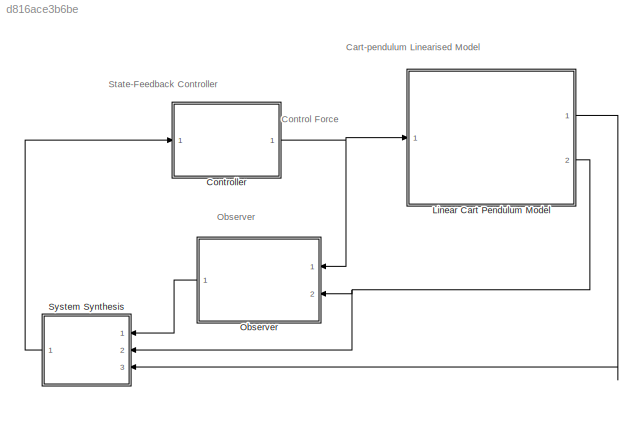
MODEL slx_d816ace3b6be
KIND model
CONFIG AbsTol = auto
CONFIG EnableMultiTasking = off
CONFIG FixedStep = auto
CONFIG MaxStep = auto
CONFIG MinStep = auto
CONFIG RelTol = 1e-3
CONFIG SampleTimeConstraint = Unconstrained
CONFIG Solver = VariableStepAuto
CONFIG SolverName = VariableStepAuto
CONFIG StartTime = 0.0
CONFIG StopTime = 10.0
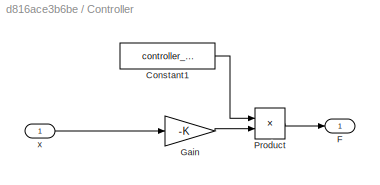
BLOCK [SubSystem] Controller
  Ports = [1, 1]
  RequestExecContextInheritance = off
BLOCK [Constant] Controller/Constant1
  Value = controller_enabled
BLOCK [Outport] Controller/F
  IconDisplay = Port number
BLOCK [Gain] Controller/Gain
  Gain = -K
  Multiplication = Matrix(K*u)
  OutDataTypeStr = Inherit: Inherit via internal rule
  ParamDataTypeStr = Inherit: Inherit via internal rule
  SaturateOnIntegerOverflow = off
BLOCK [Product] Controller/Product
  InputSameDT = off
  OutDataTypeStr = Inherit: Inherit via internal rule
  Ports = [2, 1]
  RndMeth = Floor
  SaturateOnIntegerOverflow = off
BLOCK [Inport] Controller/x
  IconDisplay = Port number
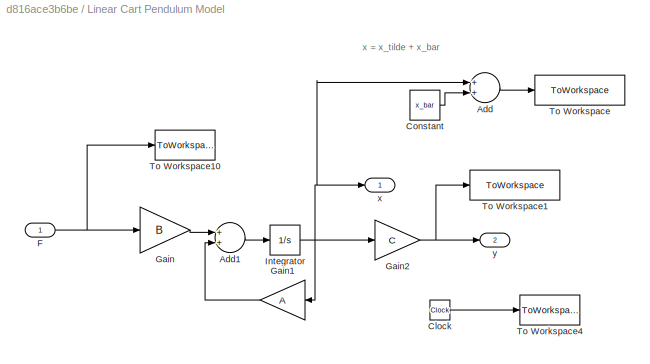
BLOCK [SubSystem] Linear Cart Pendulum Model
  Ports = [1, 2]
  RequestExecContextInheritance = off
BLOCK [Sum] Linear Cart Pendulum Model/Add
  InputSameDT = off
  OutDataTypeStr = Inherit: Inherit via internal rule
  Ports = [2, 1]
  SaturateOnIntegerOverflow = off
BLOCK [Sum] Linear Cart Pendulum Model/Add1
  InputSameDT = off
  OutDataTypeStr = Inherit: Inherit via internal rule
  Ports = [2, 1]
  SaturateOnIntegerOverflow = off
BLOCK [Clock] Linear Cart Pendulum Model/Clock
BLOCK [Constant] Linear Cart Pendulum Model/Constant
  Value = x_bar
BLOCK [Inport] Linear Cart Pendulum Model/F
  IconDisplay = Port number
BLOCK [Gain] Linear Cart Pendulum Model/Gain
  Gain = B
  Multiplication = Matrix(K*u)
  OutDataTypeStr = Inherit: Inherit via internal rule
  ParamDataTypeStr = Inherit: Inherit via internal rule
  SaturateOnIntegerOverflow = off
BLOCK [Gain] Linear Cart Pendulum Model/Gain1
  Gain = A
  Multiplication = Matrix(K*u)
  OutDataTypeStr = Inherit: Inherit via internal rule
  ParamDataTypeStr = Inherit: Inherit via internal rule
  SaturateOnIntegerOverflow = off
BLOCK [Gain] Linear Cart Pendulum Model/Gain2
  Gain = C
  Multiplication = Matrix(K*u)
  OutDataTypeStr = Inherit: Inherit via internal rule
  ParamDataTypeStr = Inherit: Inherit via internal rule
  SaturateOnIntegerOverflow = off
BLOCK [Integrator] Linear Cart Pendulum Model/Integrator
  InitialCondition = x0-x_bar
  Ports = [1, 1]
BLOCK [ToWorkspace] Linear Cart Pendulum Model/To Workspace
  FixptAsFi = on
  MaxDataPoints = inf
  Ports = [1]
  SampleTime = -1
  VariableName = x
BLOCK [ToWorkspace] Linear Cart Pendulum Model/To Workspace1
  FixptAsFi = on
  MaxDataPoints = inf
  Ports = [1]
  SampleTime = -1
  VariableName = y
BLOCK [ToWorkspace] Linear Cart Pendulum Model/To Workspace10
  MaxDataPoints = inf
  Ports = [1]
  SampleTime = -1
  VariableName = F
BLOCK [ToWorkspace] Linear Cart Pendulum Model/To Workspace4
  MaxDataPoints = inf
  Ports = [1]
  SampleTime = -1
  VariableName = t
BLOCK [Outport] Linear Cart Pendulum Model/x 
  IconDisplay = Port number
  VectorParamsAs1DForOutWhenUnconnected = off
BLOCK [Outport] Linear Cart Pendulum Model/y
  IconDisplay = Port number
  Port = 2
  VectorParamsAs1DForOutWhenUnconnected = off
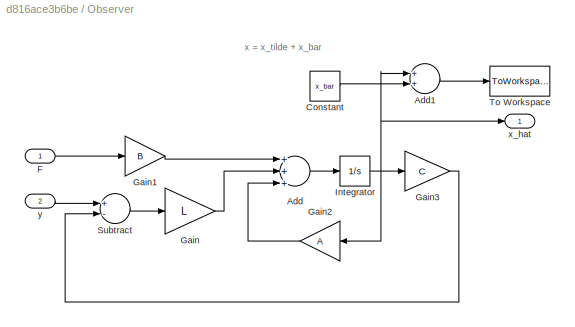
BLOCK [SubSystem] Observer
  Ports = [2, 1]
  RequestExecContextInheritance = off
BLOCK [Sum] Observer/Add
  InputSameDT = off
  Inputs = +++
  OutDataTypeStr = Inherit: Inherit via internal rule
  Ports = [3, 1]
  SaturateOnIntegerOverflow = off
BLOCK [Sum] Observer/Add1
  InputSameDT = off
  OutDataTypeStr = Inherit: Inherit via internal rule
  Ports = [2, 1]
  SaturateOnIntegerOverflow = off
BLOCK [Constant] Observer/Constant
  Value = x_bar
BLOCK [Inport] Observer/F
  IconDisplay = Port number
BLOCK [Gain] Observer/Gain
  Gain = L
  Multiplication = Matrix(K*u)
  OutDataTypeStr = Inherit: Inherit via internal rule
  ParamDataTypeStr = Inherit: Inherit via internal rule
  SaturateOnIntegerOverflow = off
BLOCK [Gain] Observer/Gain1
  Gain = B
  Multiplication = Matrix(K*u)
  OutDataTypeStr = Inherit: Inherit via internal rule
  ParamDataTypeStr = Inherit: Inherit via internal rule
  SaturateOnIntegerOverflow = off
BLOCK [Gain] Observer/Gain2
  Gain = A
  Multiplication = Matrix(K*u)
  OutDataTypeStr = Inherit: Inherit via internal rule
  ParamDataTypeStr = Inherit: Inherit via internal rule
  SaturateOnIntegerOverflow = off
BLOCK [Gain] Observer/Gain3
  Gain = C
  Multiplication = Matrix(K*u)
  OutDataTypeStr = Inherit: Inherit via internal rule
  ParamDataTypeStr = Inherit: Inherit via internal rule
  SaturateOnIntegerOverflow = off
BLOCK [Integrator] Observer/Integrator
  Ports = [1, 1]
BLOCK [Sum] Observer/Subtract
  InputSameDT = off
  Inputs = +-
  OutDataTypeStr = Inherit: Inherit via internal rule
  Ports = [2, 1]
  SaturateOnIntegerOverflow = off
BLOCK [ToWorkspace] Observer/To Workspace
  FixptAsFi = on
  MaxDataPoints = inf
  Ports = [1]
  SampleTime = -1
  VariableName = x_hat
BLOCK [Outport] Observer/x_hat
  IconDisplay = Port number
  VectorParamsAs1DForOutWhenUnconnected = off
BLOCK [Inport] Observer/y
  IconDisplay = Port number
  Port = 2
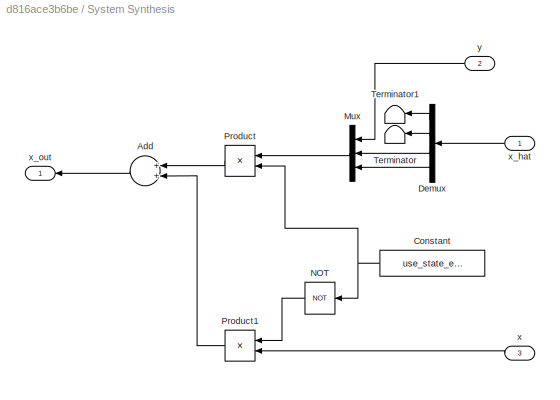
BLOCK [SubSystem] System Synthesis
  Ports = [3, 1]
  RequestExecContextInheritance = off
BLOCK [Sum] System Synthesis/Add
  InputSameDT = off
  OutDataTypeStr = Inherit: Inherit via internal rule
  Ports = [2, 1]
  SaturateOnIntegerOverflow = off
BLOCK [Constant] System Synthesis/Constant
  Value = use_state_estimates
BLOCK [Demux] System Synthesis/Demux
  DisplayOption = bar
  Ports = [1, 4]
BLOCK [Mux] System Synthesis/Mux
  DisplayOption = bar
  Inputs = 3
  Ports = [3, 1]
BLOCK [Logic] System Synthesis/NOT
  AllPortsSameDT = off
  IconShape = distinctive
  Operator = NOT
  OutDataTypeStr = boolean
  Ports = [1, 1]
BLOCK [Product] System Synthesis/Product
  InputSameDT = off
  OutDataTypeStr = Inherit: Inherit via internal rule
  Ports = [2, 1]
  RndMeth = Floor
  SaturateOnIntegerOverflow = off
BLOCK [Product] System Synthesis/Product1
  InputSameDT = off
  OutDataTypeStr = Inherit: Inherit via internal rule
  Ports = [2, 1]
  RndMeth = Floor
  SaturateOnIntegerOverflow = off
BLOCK [Terminator] System Synthesis/Terminator
BLOCK [Terminator] System Synthesis/Terminator1
BLOCK [Inport] System Synthesis/x
  IconDisplay = Port number
  Port = 3
BLOCK [Inport] System Synthesis/x_hat
  IconDisplay = Port number
BLOCK [Outport] System Synthesis/x_out
  IconDisplay = Port number
BLOCK [Inport] System Synthesis/y
  IconDisplay = Port number
  Port = 2
ANNOTATION (root): Cart-pendulum Linearised Model
ANNOTATION (root): State-Feedback Controller
ANNOTATION (root): Control Force
ANNOTATION (root): Observer
ANNOTATION Linear Cart Pendulum Model: x = x_tilde + x_bar
ANNOTATION Observer: x = x_tilde + x_bar
LINE Controller/Constant1:1 -> Controller/Product:1
LINE Controller/Gain:1 -> Controller/Product:2
LINE Controller/Product:1 -> Controller/F:1
LINE Controller/x:1 -> Controller/Gain:1
NET Controller:1 -> Linear Cart Pendulum Model:1, Observer:1
LINE Linear Cart Pendulum Model/Add1:1 -> Linear Cart Pendulum Model/Integrator:1
LINE Linear Cart Pendulum Model/Add:1 -> Linear Cart Pendulum Model/To Workspace:1
LINE Linear Cart Pendulum Model/Clock:1 -> Linear Cart Pendulum Model/To Workspace4:1
LINE Linear Cart Pendulum Model/Constant:1 -> Linear Cart Pendulum Model/Add:2
NET Linear Cart Pendulum Model/F:1 -> Linear Cart Pendulum Model/Gain:1, Linear Cart Pendulum Model/To Workspace10:1
LINE Linear Cart Pendulum Model/Gain1:1 -> Linear Cart Pendulum Model/Add1:2
NET Linear Cart Pendulum Model/Gain2:1 -> Linear Cart Pendulum Model/To Workspace1:1, Linear Cart Pendulum Model/y:1
LINE Linear Cart Pendulum Model/Gain:1 -> Linear Cart Pendulum Model/Add1:1
NET Linear Cart Pendulum Model/Integrator:1 -> Linear Cart Pendulum Model/Add:1, Linear Cart Pendulum Model/Gain1:1, Linear Cart Pendulum Model/Gain2:1, Linear Cart Pendulum Model/x :1
LINE Linear Cart Pendulum Model:1 -> System Synthesis:3
NET Linear Cart Pendulum Model:2 -> Observer:2, System Synthesis:2
LINE Observer/Add1:1 -> Observer/To Workspace:1
LINE Observer/Add:1 -> Observer/Integrator:1
LINE Observer/Constant:1 -> Observer/Add1:2
LINE Observer/F:1 -> Observer/Gain1:1
LINE Observer/Gain1:1 -> Observer/Add:1
LINE Observer/Gain2:1 -> Observer/Add:3
LINE Observer/Gain3:1 -> Observer/Subtract:2
LINE Observer/Gain:1 -> Observer/Add:2
NET Observer/Integrator:1 -> Observer/Add1:1, Observer/Gain2:1, Observer/Gain3:1, Observer/x_hat:1
LINE Observer/Subtract:1 -> Observer/Gain:1
LINE Observer/y:1 -> Observer/Subtract:1
LINE Observer:1 -> System Synthesis:1
LINE System Synthesis/Add:1 -> System Synthesis/x_out:1
NET System Synthesis/Constant:1 -> System Synthesis/NOT:1, System Synthesis/Product:2
LINE System Synthesis/Demux:1 -> System Synthesis/Terminator1:1
LINE System Synthesis/Demux:2 -> System Synthesis/Terminator:1
LINE System Synthesis/Demux:3 -> System Synthesis/Mux:2
LINE System Synthesis/Demux:4 -> System Synthesis/Mux:3
LINE System Synthesis/Mux:1 -> System Synthesis/Product:1
LINE System Synthesis/NOT:1 -> System Synthesis/Product1:1
LINE System Synthesis/Product1:1 -> System Synthesis/Add:2
LINE System Synthesis/Product:1 -> System Synthesis/Add:1
LINE System Synthesis/x:1 -> System Synthesis/Product1:2
LINE System Synthesis/x_hat:1 -> System Synthesis/Demux:1
LINE System Synthesis/y:1 -> System Synthesis/Mux:1
LINE System Synthesis:1 -> Controller:1
note: NET lines group one-source signal fan-out (src -> all destinations, sorted); 1:1 wires keep LINE
